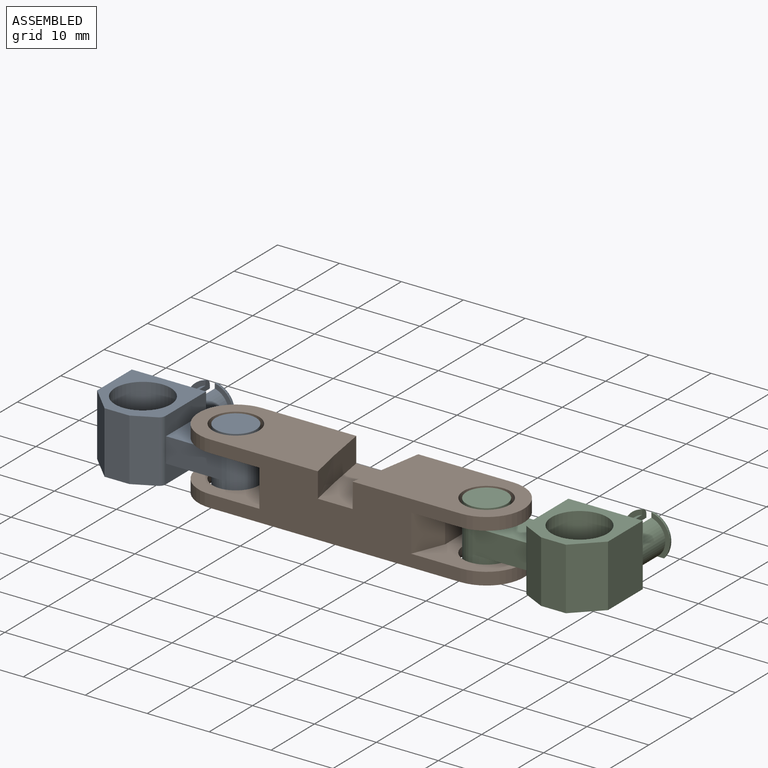
[diagram: assembled view]
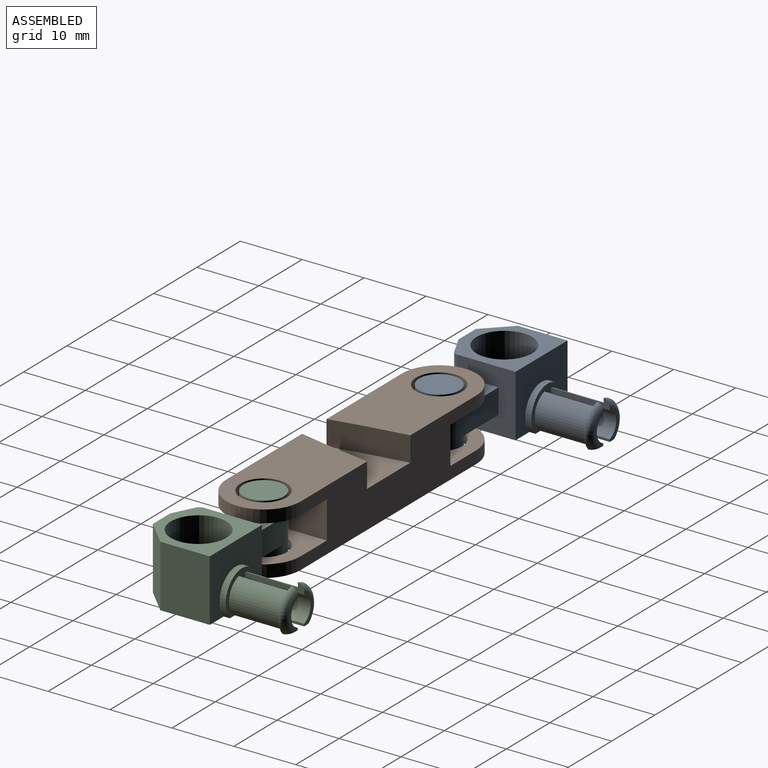
[diagram: assembled view, second angle]
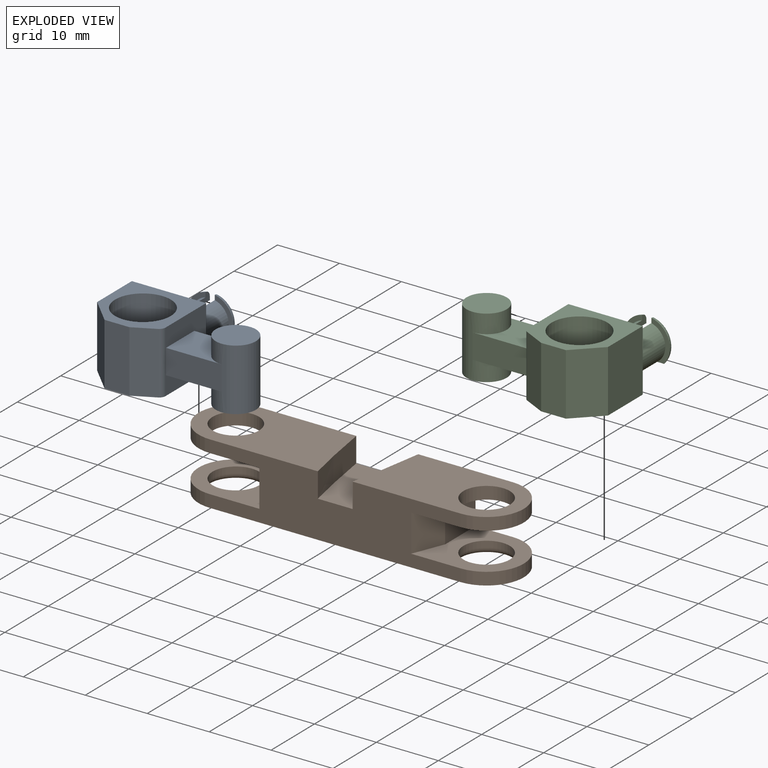
[diagram: exploded view]
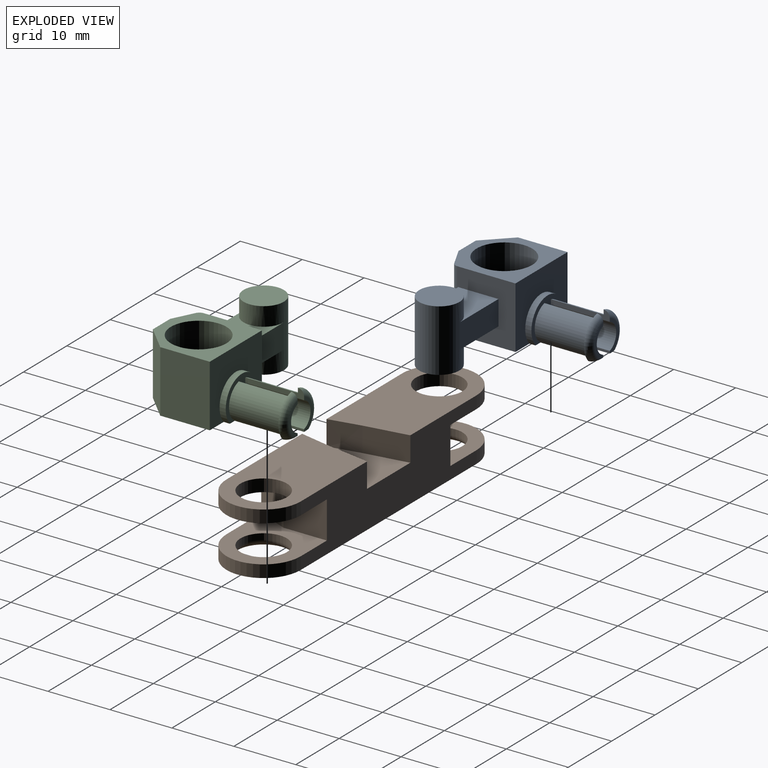
[diagram: exploded view, second angle]
ASSEMBLY  parts=3 mates=2
PART A: 33 faces, bbox 24.4x22.6x11.3 mm
  f0: plane 6.17x3mm, normal (0,1,0), area 5.5mm2, adj f3,f4,f27,f31
  f1: plane 9.5x0.38mm, normal (-1,0,0), area 3.6mm2, adj f2,f4,f5,f6
  f2: cylinder r=2.25mm len=9.5mm, axis (0,1,0), area 52.6mm2, adj f1,f3,f5,f6
  f3: plane 9.64x1.69mm, normal (-1,0,0), area 8mm2, adj f0,f2,f5,f6,f27,f31
  f4: plane 22.5x12mm, normal (0,0,1), area 92.8mm2, adj f0,f1,f5,f6,f7,f8,f10,f11
  f5: plane 5.15x2mm, normal (0,-1,0), area 3.1mm2, adj f1,f2,f3,f4,f31
  f6: plane 7.5x6.25mm, normal (0,-1,0), area 29.7mm2, adj f1,f2,f3,f4,f18,f21,f24,f25
  f7: plane 10x8mm, normal (-1,0,0), area 80mm2, adj f4,f9,f10,f19
  f8: plane 10x9.38mm, normal (1,0,0), area 67.8mm2, adj f4,f9,f14,f15,f16,f17,f19,f20
  f9: plane 12x12mm, normal (0,0,-1), area 68.3mm2, adj f7,f8,f10,f11,f12,f13,f19,f20
  f10: plane 10x4mm, normal (-0.71,0.71,0), area 56.6mm2, adj f4,f7,f9,f13
  f11: plane 10x3.45mm, normal (0.45,0.89,0), area 38.5mm2, adj f4,f9,f13,f20
  f12: cylinder r=4.5mm len=10mm, axis (0,0,-1), area 282.7mm2, adj f4,f9
  f13: plane 10x4mm, normal (0,1,0), area 40mm2, adj f4,f9,f10,f11
  f14: plane 9x4mm, normal (0,1,0), area 36mm2, adj f8,f16,f17,f28
  f15: plane 9x4mm, normal (0,-1,0), area 36mm2, adj f8,f16,f17,f28
  f16: plane 9x6.5mm, normal (0,0,1), area 41.9mm2, adj f8,f14,f15,f28
  f17: plane 9x6.5mm, normal (0,0,-1), area 41.9mm2, adj f8,f14,f15,f28
  f18: cylinder r=3.75mm len=7.5mm, axis (0,-1,0), area 17.3mm2, adj f4,f6,f19
  f19: plane 12x10mm, normal (0,-1,0), area 80.7mm2, adj f4,f7,f8,f9,f18
  f20: cylinder r=1mm len=10mm, axis (0,0,-1), area 11.1mm2, adj f4,f8,f9,f11
  f21: plane 9.64x1.69mm, normal (1,0,0), area 8mm2, adj f6,f22,f23,f24,f26,f32
  f22: plane 5.15x2mm, normal (0,-1,0), area 3.1mm2, adj f4,f21,f24,f25,f32
  f23: plane 6.17x3mm, normal (0,1,0), area 5.5mm2, adj f4,f21,f26,f32
  f24: cylinder r=2.25mm len=9.5mm, axis (0,1,0), area 52.6mm2, adj f6,f21,f22,f25
  f25: plane 9.5x0.38mm, normal (1,0,0), area 3.6mm2, adj f4,f6,f22,f24
  f26: cylinder r=3mm len=8.5mm, axis (0,1,0), area 58.7mm2, adj f4,f6,f21,f23
  f27: cylinder r=3mm len=8.5mm, axis (0,1,0), area 58.7mm2, adj f0,f3,f4,f6
  f28: cylinder r=3.25mm len=10mm, axis (0,0,-1), area 163.4mm2, adj f14,f15,f16,f17,f29,f30
  f29: plane 6.5x6.5mm, normal (0,0,1), area 33.2mm2, adj f28
  f30: plane 6.5x6.5mm, normal (0,0,-1), area 33.2mm2, adj f28
  f31: torus R=2.75mm, axis (0,-1,0), area 11.6mm2, adj f0,f3,f4,f5
  f32: torus R=2.75mm, axis (0,-1,0), area 11.6mm2, adj f4,f21,f22,f23
PART B: 26 faces, bbox 52.5x12.4x10 mm
  f0: plane 40.5x10mm, normal (0,1,0), area 286.5mm2, adj f1,f2,f5,f6,f7,f11,f12,f13
  f1: plane 23.83x12.39mm, normal (0,0,-1), area 207.6mm2, adj f0,f7,f8,f9,f21
  f2: cylinder r=6mm len=12mm, axis (0,0,-1), area 37.7mm2, adj f0,f8,f11,f16
  f3: cylinder r=3.75mm len=7.5mm, axis (0,0,-1), area 23.6mm2, adj f16,f25
  f4: cylinder r=3.75mm len=7.5mm, axis (0,0,-1), area 23.6mm2, adj f13,f24
  f5: cylinder r=6mm len=12mm, axis (0,0,-1), area 37.7mm2, adj f0,f8,f11,f13
  f6: cylinder r=6mm len=12mm, axis (0,0,-1), area 37.7mm2, adj f0,f8,f12,f14
  f7: cylinder r=6mm len=12mm, axis (0,0,-1), area 37.7mm2, adj f0,f1,f8,f17
  f8: plane 40.5x10mm, normal (0,-1,0), area 293mm2, adj f1,f2,f5,f6,f7,f11,f12,f13
  f9: cylinder r=3.75mm len=7.5mm, axis (0,0,-1), area 47.1mm2, adj f1,f17
  f10: cylinder r=3.75mm len=7.5mm, axis (0,0,-1), area 47.1mm2, adj f12,f14
  f11: plane 52.5x12mm, normal (0,0,1), area 457.3mm2, adj f0,f2,f5,f8,f24,f25
  f12: plane 23.83x12.39mm, normal (0,0,-1), area 207.6mm2, adj f0,f6,f8,f10,f22
  f13: plane 14x12mm, normal (0,0,-1), area 89.4mm2, adj f0,f4,f5,f8,f15,f19
  f14: plane 14x12mm, normal (0,0,1), area 89.4mm2, adj f0,f6,f8,f10,f15,f19
  f15: plane 7x6mm, normal (1,0,0), area 42mm2, adj f8,f13,f14,f19
  f16: plane 14x12mm, normal (0,0,-1), area 89.4mm2, adj f0,f2,f3,f8,f18,f20
  f17: plane 14x12mm, normal (0,0,1), area 89.4mm2, adj f0,f7,f8,f9,f18,f20
  f18: plane 7x6mm, normal (-1,0,0), area 42mm2, adj f8,f16,f17,f20
  f19: plane 6x5mm, normal (0.93,0.37,0), area 32.3mm2, adj f0,f13,f14,f15
  f20: plane 6x5mm, normal (-0.93,0.37,0), area 32.3mm2, adj f0,f16,f17,f18
  f21: extruded ~12x4mm, area 48.8mm2, adj f0,f1,f8,f23
  f22: extruded ~12x4mm, area 48.8mm2, adj f0,f8,f12,f23
  f23: plane 12.39x10mm, normal (0,0,-1), area 95.6mm2, adj f0,f8,f21,f22
  f24: torus R=4.75mm, axis (0,0,1), area 40.6mm2, adj f4,f11
  f25: torus R=4.75mm, axis (0,0,1), area 40.6mm2, adj f3,f11
PART C: 33 faces, bbox 24.4x22.6x11.3 mm
  f0: plane 6.17x3mm, normal (0,1,0), area 5.5mm2, adj f3,f4,f27,f31
  f1: plane 9.5x0.38mm, normal (1,0,0), area 3.6mm2, adj f2,f4,f5,f6
  f2: cylinder r=2.25mm len=9.5mm, axis (0,1,0), area 52.6mm2, adj f1,f3,f5,f6
  f3: plane 9.64x1.69mm, normal (1,0,0), area 8mm2, adj f0,f2,f5,f6,f27,f31
  f4: plane 22.5x12mm, normal (0,0,1), area 92.8mm2, adj f0,f1,f5,f6,f7,f8,f10,f11
  f5: plane 5.15x2mm, normal (0,-1,0), area 3.1mm2, adj f1,f2,f3,f4,f31
  f6: plane 7.5x6.25mm, normal (0,-1,0), area 29.7mm2, adj f1,f2,f3,f4,f18,f21,f24,f25
  f7: plane 10x8mm, normal (1,0,0), area 80mm2, adj f4,f9,f10,f19
  f8: plane 10x9.38mm, normal (-1,0,0), area 67.8mm2, adj f4,f9,f14,f15,f16,f17,f19,f20
  f9: plane 12x12mm, normal (0,0,-1), area 68.3mm2, adj f7,f8,f10,f11,f12,f13,f19,f20
  f10: plane 10x4mm, normal (0.71,0.71,0), area 56.6mm2, adj f4,f7,f9,f13
  f11: plane 10x3.45mm, normal (-0.45,0.89,0), area 38.5mm2, adj f4,f9,f13,f20
  f12: cylinder r=4.5mm len=10mm, axis (0,0,-1), area 282.7mm2, adj f4,f9
  f13: plane 10x4mm, normal (0,1,0), area 40mm2, adj f4,f9,f10,f11
  f14: plane 9x4mm, normal (0,1,0), area 36mm2, adj f8,f16,f17,f28
  f15: plane 9x4mm, normal (0,-1,0), area 36mm2, adj f8,f16,f17,f28
  f16: plane 9x6.5mm, normal (0,0,1), area 41.9mm2, adj f8,f14,f15,f28
  f17: plane 9x6.5mm, normal (0,0,-1), area 41.9mm2, adj f8,f14,f15,f28
  f18: cylinder r=3.75mm len=7.5mm, axis (0,-1,0), area 17.3mm2, adj f4,f6,f19
  f19: plane 12x10mm, normal (0,-1,0), area 80.7mm2, adj f4,f7,f8,f9,f18
  f20: cylinder r=1mm len=10mm, axis (0,0,-1), area 11.1mm2, adj f4,f8,f9,f11
  f21: plane 9.64x1.69mm, normal (-1,0,0), area 8mm2, adj f6,f22,f23,f24,f26,f32
  f22: plane 5.15x2mm, normal (0,-1,0), area 3.1mm2, adj f4,f21,f24,f25,f32
  f23: plane 6.17x3mm, normal (0,1,0), area 5.5mm2, adj f4,f21,f26,f32
  f24: cylinder r=2.25mm len=9.5mm, axis (0,1,0), area 52.6mm2, adj f6,f21,f22,f25
  f25: plane 9.5x0.38mm, normal (-1,0,0), area 3.6mm2, adj f4,f6,f22,f24
  f26: cylinder r=3mm len=8.5mm, axis (0,1,0), area 58.7mm2, adj f4,f6,f21,f23
  f27: cylinder r=3mm len=8.5mm, axis (0,1,0), area 58.7mm2, adj f0,f3,f4,f6
  f28: cylinder r=3.25mm len=10mm, axis (0,0,-1), area 163.4mm2, adj f14,f15,f16,f17,f29,f30
  f29: plane 6.5x6.5mm, normal (0,0,1), area 33.2mm2, adj f28
  f30: plane 6.5x6.5mm, normal (0,0,-1), area 33.2mm2, adj f28
  f31: torus R=2.75mm, axis (0,-1,0), area 11.6mm2, adj f0,f3,f4,f5
  f32: torus R=2.75mm, axis (0,-1,0), area 11.6mm2, adj f4,f21,f22,f23
PLACE A rot(axis=(-1,0,0),180deg) t=(-34.56,20.68,112.95)mm
PLACE B rot(axis=(-1,0,0),180deg) t=(50.64,-11.59,112.95)mm
PLACE C rot(axis=(-1,0,0),180deg) t=(77.99,20.68,112.95)mm
MATE fastened C.f28 <-> B.f4  axis (0,0,-1) through (41.96,31.19,102.95)mm
MATE fastened A.f28 <-> B.f2  axis (0,0,-1) through (1.46,31.19,102.95)mm
